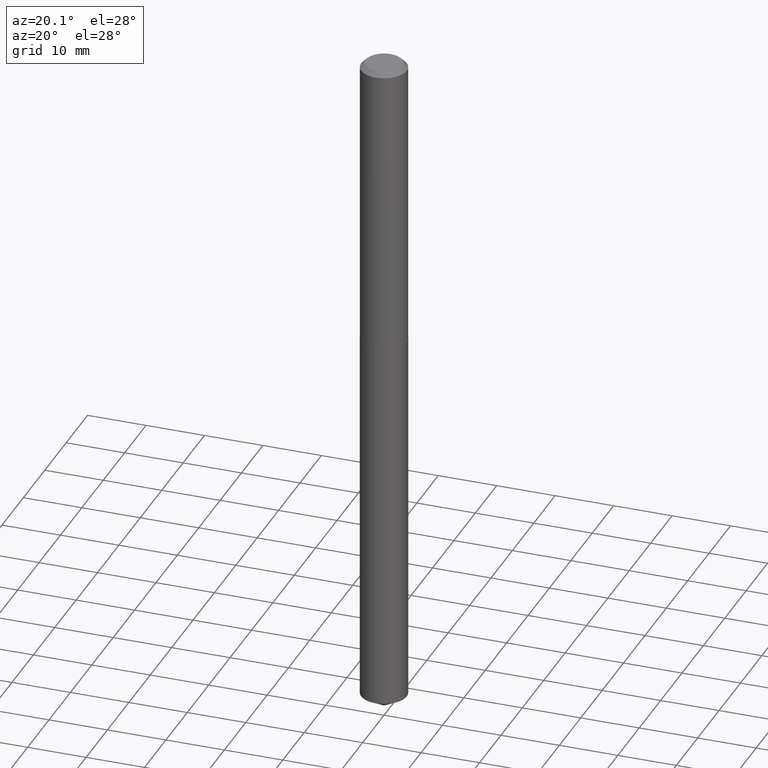
[diagram: clean part render]
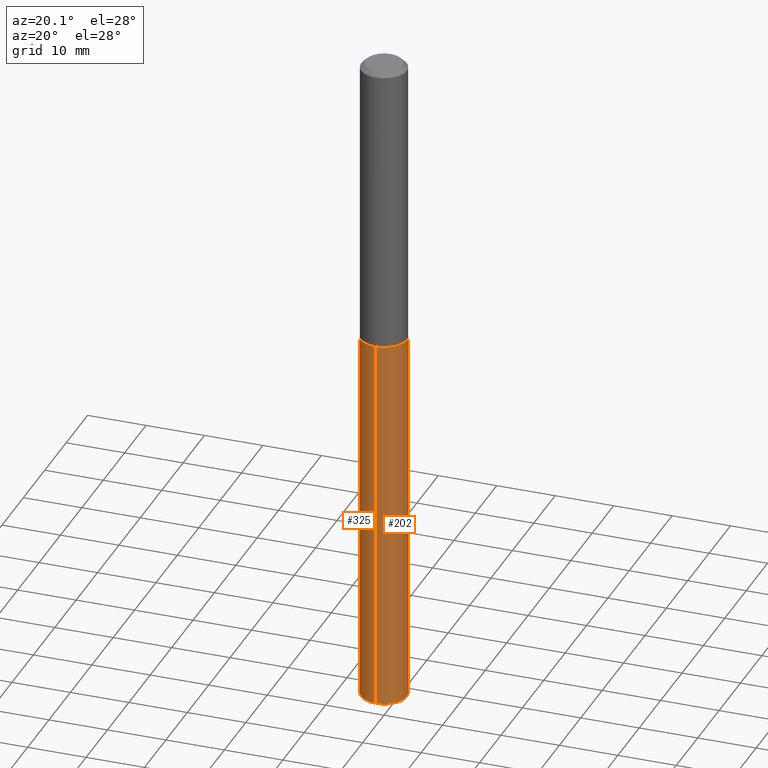
[diagram: same view with one multi-face feature highlighted, each face labeled with its STEP entity id]
A machine part, auxiliary view. The highlighted faces form ONE feature: a constant-radius fillet chain: 2 tangent blend faces with common blend radius 3.9002 mm. The faces share edges in the B-rep.
Their STEP definitions:
[1] entity #325 (Cylinder):
#2 = AXIS2_PLACEMENT_3D ( 'NONE', #12, #166, #367 ) ;
#12 = CARTESIAN_POINT ( 'NONE',  ( 4.794586141406579719E-29, -6.845398312935872740E-15, -1.960600000000000342 ) ) ;
#27 = EDGE_CURVE ( 'NONE', #389, #324, #237, .T. ) ;
#33 = DIRECTION ( 'NONE',  ( -2.445469223810942857E-29, 3.491480740779220978E-15, 1.000000000000000000 ) ) ;
#42 = CARTESIAN_POINT ( 'NONE',  ( 1.091038370759744614E-15, 0.1535499999999931642, -1.960600000000001009 ) ) ;
#44 = LINE ( 'NONE', #232, #76 ) ;
#45 = AXIS2_PLACEMENT_3D ( 'NONE', #264, #47, #138 ) ;
#47 = DIRECTION ( 'NONE',  ( -2.445469223810943138E-29, 3.491480740779220978E-15, 1.000000000000000000 ) ) ;
#56 = ORIENTED_EDGE ( 'NONE', *, *, #27, .F. ) ;
#65 = CIRCLE ( 'NONE', #172, 0.1535499999999999921 ) ;
#70 = CYLINDRICAL_SURFACE ( 'NONE', #2, 0.1535499999999999921 ) ;
#76 = VECTOR ( 'NONE', #369, 39.37007874015748143 ) ;
#96 = EDGE_CURVE ( 'NONE', #176, #353, #65, .T. ) ;
#101 = CARTESIAN_POINT ( 'NONE',  ( 1.103893982326011521E-28, -1.576067739579009076E-14, -4.514037851948319080 ) ) ;
#103 = FACE_OUTER_BOUND ( 'NONE', #331, .T. ) ;
#138 = DIRECTION ( 'NONE',  ( -6.982962677686266711E-15, -1.000000000000000000, 3.558252026915354491E-15 ) ) ;
#160 = DIRECTION ( 'NONE',  ( -2.445469223810943138E-29, 3.491480740779220978E-15, 1.000000000000000000 ) ) ;
#166 = DIRECTION ( 'NONE',  ( -2.445469223810943138E-29, 3.491480740779220978E-15, 1.000000000000000000 ) ) ;
#169 = EDGE_CURVE ( 'NONE', #353, #324, #185, .T. ) ;
#172 = AXIS2_PLACEMENT_3D ( 'NONE', #101, #160, #301 ) ;
#176 = VERTEX_POINT ( 'NONE', #280 ) ;
#183 = ORIENTED_EDGE ( 'NONE', *, *, #96, .T. ) ;
#185 = LINE ( 'NONE', #249, #266 ) ;
#232 = CARTESIAN_POINT ( 'NONE',  ( 1.091038370759681505E-15, 0.1535499999999931364, -1.960600000000001009 ) ) ;
#235 = CARTESIAN_POINT ( 'NONE',  ( -1.072233919158615706E-15, -0.1535500000000157572, -4.514037851948318192 ) ) ;
#237 = CIRCLE ( 'NONE', #45, 0.1535499999999999921 ) ;
#241 = ORIENTED_EDGE ( 'NONE', *, *, #341, .F. ) ;
#249 = CARTESIAN_POINT ( 'NONE',  ( -1.072233919158678223E-15, -0.1535500000000068477, -1.960599999999999898 ) ) ;
#264 = CARTESIAN_POINT ( 'NONE',  ( 4.794586141406579719E-29, -6.845398312935872740E-15, -1.960600000000000342 ) ) ;
#266 = VECTOR ( 'NONE', #33, 39.37007874015748143 ) ;
#280 = CARTESIAN_POINT ( 'NONE',  ( 1.091038370759744219E-15, 0.1535499999999842269, -4.514037851948319080 ) ) ;
#301 = DIRECTION ( 'NONE',  ( -6.982962677686266711E-15, -1.000000000000000000, 3.558252026915354491E-15 ) ) ;
#308 = CARTESIAN_POINT ( 'NONE',  ( -1.072233919158678223E-15, -0.1535500000000068477, -1.960599999999999898 ) ) ;
#324 = VERTEX_POINT ( 'NONE', #308 ) ;
#325 = ADVANCED_FACE ( 'NONE', ( #103 ), #70, .T. ) ;
#331 = EDGE_LOOP ( 'NONE', ( #241, #183, #358, #56 ) ) ;
#341 = EDGE_CURVE ( 'NONE', #176, #389, #44, .T. ) ;
#353 = VERTEX_POINT ( 'NONE', #235 ) ;
#358 = ORIENTED_EDGE ( 'NONE', *, *, #169, .T. ) ;
#367 = DIRECTION ( 'NONE',  ( -6.982962677686266711E-15, -1.000000000000000000, 3.558252026915354491E-15 ) ) ;
#369 = DIRECTION ( 'NONE',  ( -2.445469223810942857E-29, 3.491480740779220978E-15, 1.000000000000000000 ) ) ;
#389 = VERTEX_POINT ( 'NONE', #42 ) ;
[2] entity #202 (Cylinder):
#6 = CYLINDRICAL_SURFACE ( 'NONE', #139, 0.1535499999999999921 ) ;
#9 = DIRECTION ( 'NONE',  ( -2.445469223810943138E-29, 3.491480740779220978E-15, 1.000000000000000000 ) ) ;
#17 = EDGE_CURVE ( 'NONE', #324, #389, #344, .T. ) ;
#18 = ORIENTED_EDGE ( 'NONE', *, *, #169, .F. ) ;
#33 = DIRECTION ( 'NONE',  ( -2.445469223810942857E-29, 3.491480740779220978E-15, 1.000000000000000000 ) ) ;
#42 = CARTESIAN_POINT ( 'NONE',  ( 1.091038370759744614E-15, 0.1535499999999931642, -1.960600000000001009 ) ) ;
#44 = LINE ( 'NONE', #232, #76 ) ;
#53 = EDGE_LOOP ( 'NONE', ( #261, #328, #189, #18 ) ) ;
#55 = CARTESIAN_POINT ( 'NONE',  ( 4.794586141406579719E-29, -6.845398312935872740E-15, -1.960600000000000342 ) ) ;
#75 = DIRECTION ( 'NONE',  ( -2.445469223810943138E-29, 3.491480740779220978E-15, 1.000000000000000000 ) ) ;
#76 = VECTOR ( 'NONE', #369, 39.37007874015748143 ) ;
#92 = CARTESIAN_POINT ( 'NONE',  ( 1.103893982326011521E-28, -1.576067739579009076E-14, -4.514037851948319080 ) ) ;
#124 = DIRECTION ( 'NONE',  ( -6.982962677686266711E-15, -1.000000000000000000, 3.558252026915354491E-15 ) ) ;
#127 = CARTESIAN_POINT ( 'NONE',  ( 4.794586141406579719E-29, -6.845398312935872740E-15, -1.960600000000000342 ) ) ;
#139 = AXIS2_PLACEMENT_3D ( 'NONE', #127, #9, #337 ) ;
#142 = DIRECTION ( 'NONE',  ( -6.982962677686266711E-15, -1.000000000000000000, 3.558252026915354491E-15 ) ) ;
#159 = EDGE_CURVE ( 'NONE', #353, #176, #164, .T. ) ;
#164 = CIRCLE ( 'NONE', #309, 0.1535499999999999921 ) ;
#169 = EDGE_CURVE ( 'NONE', #353, #324, #185, .T. ) ;
#176 = VERTEX_POINT ( 'NONE', #280 ) ;
#182 = DIRECTION ( 'NONE',  ( -2.445469223810943138E-29, 3.491480740779220978E-15, 1.000000000000000000 ) ) ;
#185 = LINE ( 'NONE', #249, #266 ) ;
#189 = ORIENTED_EDGE ( 'NONE', *, *, #17, .F. ) ;
#199 = AXIS2_PLACEMENT_3D ( 'NONE', #55, #75, #142 ) ;
#202 = ADVANCED_FACE ( 'NONE', ( #276 ), #6, .T. ) ;
#232 = CARTESIAN_POINT ( 'NONE',  ( 1.091038370759681505E-15, 0.1535499999999931364, -1.960600000000001009 ) ) ;
#235 = CARTESIAN_POINT ( 'NONE',  ( -1.072233919158615706E-15, -0.1535500000000157572, -4.514037851948318192 ) ) ;
#249 = CARTESIAN_POINT ( 'NONE',  ( -1.072233919158678223E-15, -0.1535500000000068477, -1.960599999999999898 ) ) ;
#261 = ORIENTED_EDGE ( 'NONE', *, *, #159, .T. ) ;
#266 = VECTOR ( 'NONE', #33, 39.37007874015748143 ) ;
#276 = FACE_OUTER_BOUND ( 'NONE', #53, .T. ) ;
#280 = CARTESIAN_POINT ( 'NONE',  ( 1.091038370759744219E-15, 0.1535499999999842269, -4.514037851948319080 ) ) ;
#308 = CARTESIAN_POINT ( 'NONE',  ( -1.072233919158678223E-15, -0.1535500000000068477, -1.960599999999999898 ) ) ;
#309 = AXIS2_PLACEMENT_3D ( 'NONE', #92, #182, #124 ) ;
#324 = VERTEX_POINT ( 'NONE', #308 ) ;
#328 = ORIENTED_EDGE ( 'NONE', *, *, #341, .T. ) ;
#337 = DIRECTION ( 'NONE',  ( -6.982962677686266711E-15, -1.000000000000000000, 3.558252026915354491E-15 ) ) ;
#341 = EDGE_CURVE ( 'NONE', #176, #389, #44, .T. ) ;
#344 = CIRCLE ( 'NONE', #199, 0.1535499999999999921 ) ;
#353 = VERTEX_POINT ( 'NONE', #235 ) ;
#369 = DIRECTION ( 'NONE',  ( -2.445469223810942857E-29, 3.491480740779220978E-15, 1.000000000000000000 ) ) ;
#389 = VERTEX_POINT ( 'NONE', #42 ) ;